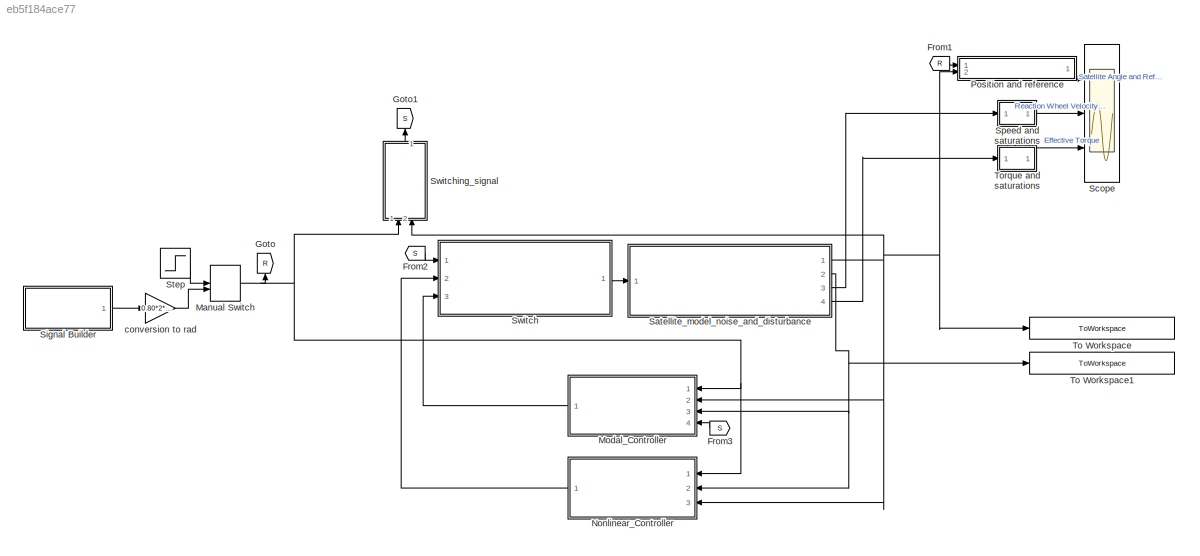
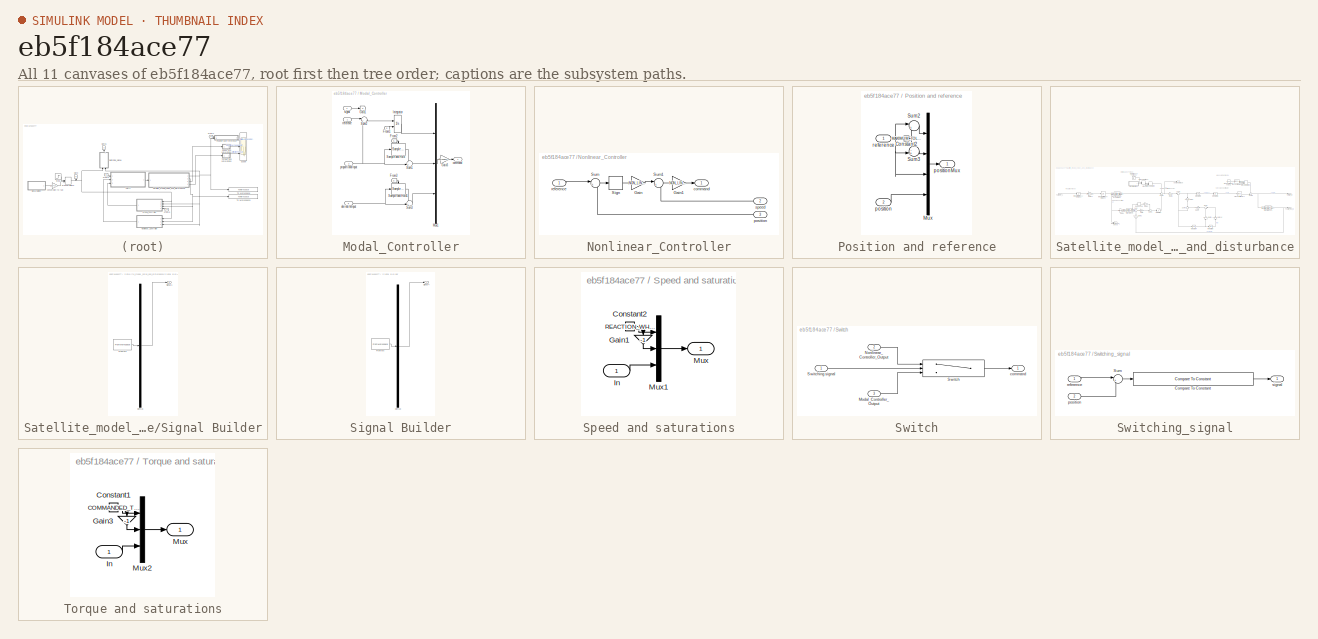
[diagram: thumbnail index - all 11 canvases of the model, root first then tree order]
MODEL slx_eb5f184ace77
KIND model
CONFIG AbsTol = auto
CONFIG EnableMultiTasking = off
CONFIG FixedStep = auto
CONFIG MaxStep = auto
CONFIG MinStep = auto
CONFIG RelTol = 1e-3
CONFIG SampleTimeConstraint = Unconstrained
CONFIG SolverName = VariableStepAuto
CONFIG StartTime = 0.0
CONFIG StopTime = 800
BLOCK [From] From1
  GotoTag = R
BLOCK [From] From2
  GotoTag = S
BLOCK [From] From3
  GotoTag = S
  NameLocation = top
BLOCK [Goto] Goto
  GotoTag = R
  NameLocation = right
BLOCK [Goto] Goto1
  GotoTag = S
  NameLocation = right
BLOCK [ManualSwitch] Manual Switch
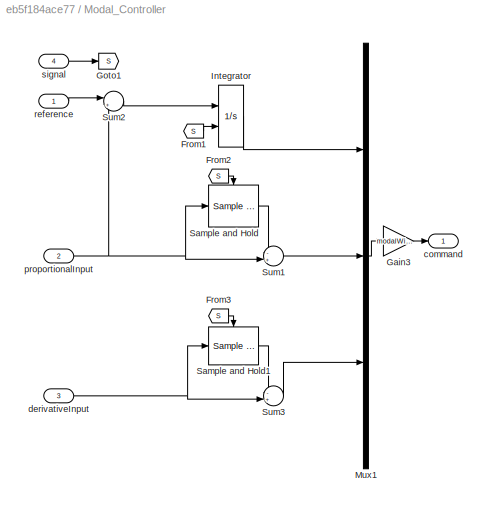
BLOCK [SubSystem] Modal_Controller
  NameLocation = top
  Ports = [4, 1]
  RequestExecContextInheritance = off
BLOCK [From] Modal_Controller/From1
  GotoTag = S
BLOCK [From] Modal_Controller/From2
  GotoTag = S
BLOCK [From] Modal_Controller/From3
  GotoTag = S
BLOCK [Gain] Modal_Controller/Gain3
  Gain = modalWithIntegratorGainMatrixStateFeedback
  Multiplication = Matrix(K*u)
BLOCK [Goto] Modal_Controller/Goto1
  GotoTag = S
BLOCK [Integrator] Modal_Controller/Integrator
  ExternalReset = either
  Ports = [2, 1]
BLOCK [Mux] Modal_Controller/Mux1
  DisplayOption = bar
  Inputs = 3
  Ports = [3, 1]
BLOCK [Reference] Modal_Controller/Sample and Hold  REF=dspsigops/Sample
and Hold
  Ports = [1, 1, 0, 1]
  SourceBlock = dspsigops/Sample\nand Hold
  SourceProductName = DSP System Toolbox
  SourceType = Sample and Hold
BLOCK [Reference] Modal_Controller/Sample and Hold1  REF=dspsigops/Sample
and Hold
  Ports = [1, 1, 0, 1]
  SourceBlock = dspsigops/Sample\nand Hold
  SourceProductName = DSP System Toolbox
  SourceType = Sample and Hold
BLOCK [Sum] Modal_Controller/Sum1
  Inputs = -+|
  Ports = [2, 1]
BLOCK [Sum] Modal_Controller/Sum2
  Inputs = |+-
  Ports = [2, 1]
BLOCK [Sum] Modal_Controller/Sum3
  Inputs = -+|
  Ports = [2, 1]
BLOCK [Outport] Modal_Controller/command
BLOCK [Inport] Modal_Controller/derivativeInput
  Port = 3
BLOCK [Inport] Modal_Controller/proportionalInput
  Port = 2
BLOCK [Inport] Modal_Controller/reference
BLOCK [Inport] Modal_Controller/signal
  Port = 4
BLOCK [SubSystem] Nonlinear_Controller
  NameLocation = top
  Ports = [3, 1]
  RequestExecContextInheritance = off
BLOCK [Gain] Nonlinear_Controller/Gain
  Gain = NON_LINEAR_CONTROL_SPEED_COMMAND
BLOCK [Gain] Nonlinear_Controller/Gain1
  Gain = NON_LINEAR_CONTROL_GAIN
BLOCK [Signum] Nonlinear_Controller/Sign
  ZeroCross = off
BLOCK [Sum] Nonlinear_Controller/Sum
  Inputs = |+-
  Ports = [2, 1]
BLOCK [Sum] Nonlinear_Controller/Sum1
  Inputs = |+-
  Ports = [2, 1]
BLOCK [Outport] Nonlinear_Controller/command
BLOCK [Inport] Nonlinear_Controller/position
  Port = 3
BLOCK [Inport] Nonlinear_Controller/reference
BLOCK [Inport] Nonlinear_Controller/speed
  Port = 2
BLOCK [SubSystem] Position and reference
  Ports = [2, 1]
  RequestExecContextInheritance = off
BLOCK [Constant] Position and reference/Constant2
  Value = MAXIMUM_TOLERABLE_POINTING_ERROR
BLOCK [Mux] Position and reference/Mux
  DisplayOption = bar
  Ports = [4, 1]
BLOCK [Sum] Position and reference/Sum2
  Inputs = |++
  Ports = [2, 1]
BLOCK [Sum] Position and reference/Sum3
  Inputs = -+|
  Ports = [2, 1]
BLOCK [Inport] Position and reference/position
  Port = 2
BLOCK [Outport] Position and reference/positionMux
BLOCK [Inport] Position and reference/reference
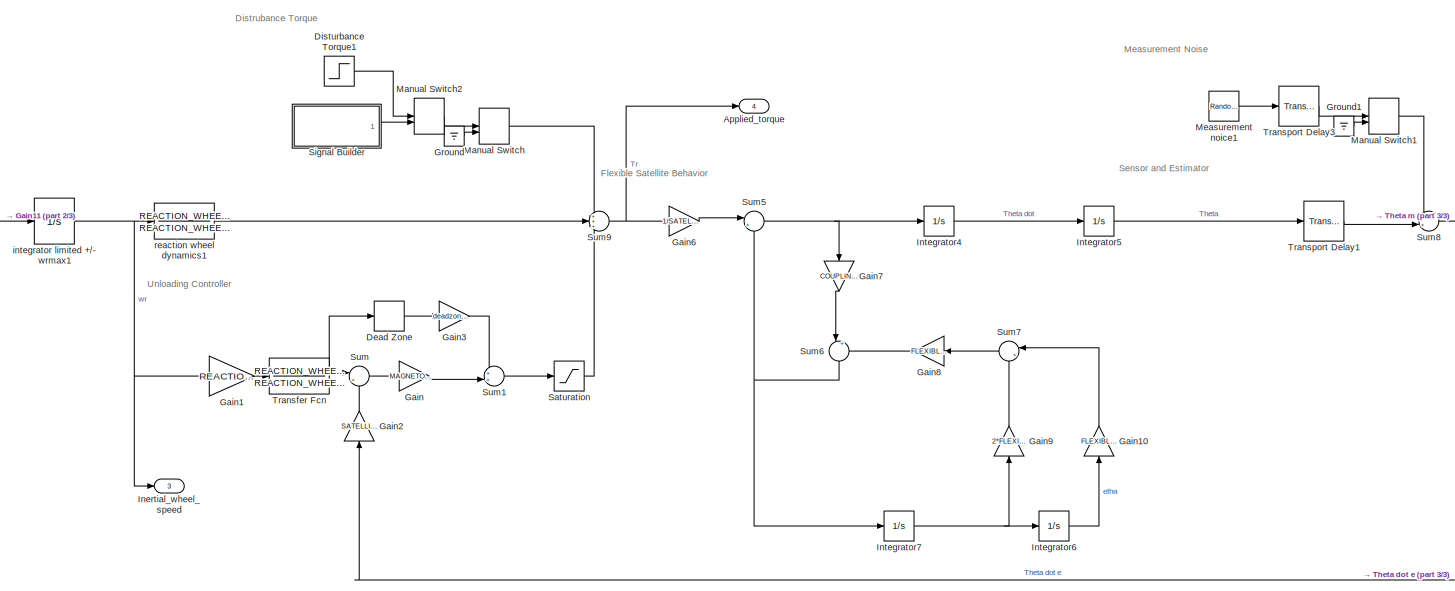
[diagram: Satellite_model_noise_and_disturbance - part 1/3, center side, full height]
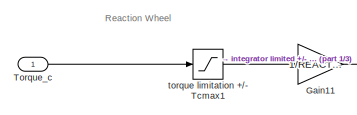
[diagram: Satellite_model_noise_and_disturbance - part 2/3, middle left region]
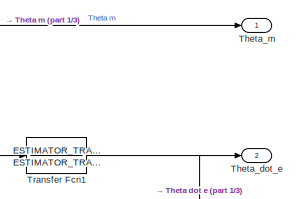
[diagram: Satellite_model_noise_and_disturbance - part 3/3, middle right region]
BLOCK [SubSystem] Satellite_model_noise_and_disturbance
  Ports = [1, 4]
  RequestExecContextInheritance = off
BLOCK [Outport] Satellite_model_noise_and_disturbance/Applied_torque
  Port = 4
BLOCK [DeadZone] Satellite_model_noise_and_disturbance/Dead Zone
  LowerValue = -DEADZONE_REACTION_WHEEL_ANGULAR_MOMENTUM
  UpperValue = DEADZONE_REACTION_WHEEL_ANGULAR_MOMENTUM
BLOCK [Step] Satellite_model_noise_and_disturbance/Disturbance Torque1
  After = DISTURBANCE_TORQUE
  SampleTime = 0
  Time = DISTURBANCE_TORQUE_DELAY
BLOCK [Gain] Satellite_model_noise_and_disturbance/Gain
  Gain = MAGNETORQUER_CONTROLLER_GAIN
BLOCK [Gain] Satellite_model_noise_and_disturbance/Gain1
  Gain = REACTION_WHEEL_INERTIA
BLOCK [Gain] Satellite_model_noise_and_disturbance/Gain10
  Gain = FLEXIBLE_MODE_FREQUENCY
  NameLocation = right
BLOCK [Gain] Satellite_model_noise_and_disturbance/Gain11
  Gain = 1/REACTION_WHEEL_INERTIA
BLOCK [Gain] Satellite_model_noise_and_disturbance/Gain2
  Gain = SATELLITE_INERTIA
  NameLocation = right
BLOCK [Gain] Satellite_model_noise_and_disturbance/Gain3
  Gain = deadzoneControllerGain
BLOCK [Gain] Satellite_model_noise_and_disturbance/Gain6
  Gain = 1/SATELLITE_INERTIA
BLOCK [Gain] Satellite_model_noise_and_disturbance/Gain7
  Gain = COUPLING_COEFFICIENT
  NameLocation = left
BLOCK [Gain] Satellite_model_noise_and_disturbance/Gain8
  Gain = FLEXIBLE_MODE_FREQUENCY
  NameLocation = top
BLOCK [Gain] Satellite_model_noise_and_disturbance/Gain9
  Gain = 2*FLEXIBLE_MODE_DAMPING_RATIO
  NameLocation = right
BLOCK [Ground] Satellite_model_noise_and_disturbance/Ground
BLOCK [Ground] Satellite_model_noise_and_disturbance/Ground1
BLOCK [Outport] Satellite_model_noise_and_disturbance/Inertial_wheel_speed
  Port = 3
BLOCK [Integrator] Satellite_model_noise_and_disturbance/Integrator4
  Ports = [1, 1]
BLOCK [Integrator] Satellite_model_noise_and_disturbance/Integrator5
  Ports = [1, 1]
BLOCK [Integrator] Satellite_model_noise_and_disturbance/Integrator6
  InitialCondition = INITIAL_CONDITION_ON_STATE
  Ports = [1, 1]
BLOCK [Integrator] Satellite_model_noise_and_disturbance/Integrator7
  Ports = [1, 1]
BLOCK [ManualSwitch] Satellite_model_noise_and_disturbance/Manual Switch
BLOCK [ManualSwitch] Satellite_model_noise_and_disturbance/Manual Switch1
  CurrentSetting = 0
BLOCK [ManualSwitch] Satellite_model_noise_and_disturbance/Manual Switch2
BLOCK [RandomNumber] Satellite_model_noise_and_disturbance/Measurement noice1
  SampleTime = 0.01
  Variance = MEASUREMENT_NOISE_VARIANCE
BLOCK [Saturate] Satellite_model_noise_and_disturbance/Saturation
  LowerLimit = -UNLOADING_TORQUE_SATURATION
  UpperLimit = UNLOADING_TORQUE_SATURATION
BLOCK [SubSystem] Satellite_model_noise_and_disturbance/Signal Builder
  ClipboardFcn = sigbuilder_block('clipboard');
  CloseFcn = sigbuilder_block('close');
  ContinueFcn = sigbuilder_block('continue');
  CopyFcn = sigbuilder_block('copy');
  DeleteFcn = sigbuilder_block('delete');
  LoadFcn = sigbuilder_block('load');
  MaskHideContents = on
  ModelCloseFcn = sigbuilder_block('modelClose');
  NameChangeFcn = sigbuilder_block('namechange');
  OpenFcn = sigbuilder_block('open',[322.5 150.75 550.5 359.25 ]);
  PauseFcn = sigbuilder_block('pause');
  Ports = [0, 1]
  PreSaveFcn = sigbuilder_block('preSave');
  RequestExecContextInheritance = off
  StartFcn = sigbuilder_block('start');
  StopFcn = sigbuilder_block('stop');
  Tag = STV Subsys
BLOCK [Demux] Satellite_model_noise_and_disturbance/Signal Builder/Demux
  DisplayOption = none
  Outputs = 1
  Ports = [1, 1]
  Tag = STV Demux
BLOCK [FromWorkspace] Satellite_model_noise_and_disturbance/Signal Builder/FromWs
  Tag = STV FromWs
  VariableName = tuvar
BLOCK [Outport] Satellite_model_noise_and_disturbance/Signal Builder/Signal 1
  Tag = STV Outport
BLOCK [Sum] Satellite_model_noise_and_disturbance/Sum
  Inputs = |+-
  Ports = [2, 1]
BLOCK [Sum] Satellite_model_noise_and_disturbance/Sum1
  Inputs = ++|
  Ports = [2, 1]
BLOCK [Sum] Satellite_model_noise_and_disturbance/Sum5
  Inputs = |++
  Ports = [2, 1]
BLOCK [Sum] Satellite_model_noise_and_disturbance/Sum6
  Inputs = |+-
  NameLocation = left
  Ports = [2, 1]
BLOCK [Sum] Satellite_model_noise_and_disturbance/Sum7
  Inputs = |++
  NameLocation = top
  Ports = [2, 1]
BLOCK [Sum] Satellite_model_noise_and_disturbance/Sum8
  Inputs = ++|
  Ports = [2, 1]
BLOCK [Sum] Satellite_model_noise_and_disturbance/Sum9
  Inputs = +++
  Ports = [3, 1]
BLOCK [Outport] Satellite_model_noise_and_disturbance/Theta_dot_e
  Port = 2
BLOCK [Outport] Satellite_model_noise_and_disturbance/Theta_m
BLOCK [Inport] Satellite_model_noise_and_disturbance/Torque_c
BLOCK [TransferFcn] Satellite_model_noise_and_disturbance/Transfer Fcn
  Denominator = REACTION_WHEEL_ANGULAR_MOMENTUM.TRANSFER_FUNCTION.Denominator{1}
  Numerator = REACTION_WHEEL_ANGULAR_MOMENTUM.TRANSFER_FUNCTION.Numerator{1}
BLOCK [TransferFcn] Satellite_model_noise_and_disturbance/Transfer Fcn1
  Denominator = ESTIMATOR_TRANSFER_FUNCTION_DENOMINATOR
  Numerator = ESTIMATOR_TRANSFER_FUNCTION_NUMERATOR
BLOCK [TransportDelay] Satellite_model_noise_and_disturbance/Transport Delay1
  DelayTime = MEASUREMENT_DELAY
  Ports = [1, 1]
BLOCK [TransportDelay] Satellite_model_noise_and_disturbance/Transport Delay3
  DelayTime = STAR_TRACKER_NOISE_DELAY
  Ports = [1, 1]
BLOCK [Integrator] Satellite_model_noise_and_disturbance/integrator limited +//- wrmax1
  LimitOutput = on
  LowerSaturationLimit = -REACTION_WHEEL_VELOCITY_SATURATION
  Ports = [1, 1]
  UpperSaturationLimit = REACTION_WHEEL_VELOCITY_SATURATION
BLOCK [TransferFcn] Satellite_model_noise_and_disturbance/reaction wheel dynamics1
  Denominator = REACTION_WHEEL_DYNAMICS_DENOMINATOR
  Numerator = REACTION_WHEEL_DYNAMICS_NUMERATOR
BLOCK [Saturate] Satellite_model_noise_and_disturbance/torque limitation +//- Tcmax1
  LowerLimit = -COMMANDED_TORQUE_SATURATION
  UpperLimit = COMMANDED_TORQUE_SATURATION
BLOCK [Scope] Scope
  Floating = off
  NumInputPorts = 3
  Ports = [3]
  ScopeSpecificationString = Simulink.scopes.TimeScopeBlockCfg('CurrentConfiguration', extmgr.ConfigurationSet(extmgr.Configuration('Core','General UI',true),extmgr.Configuration('Core','Source UI',true),extmgr.Configuration('Sources','WiredSimulink',true),extmgr.Configuration('Visuals','Time Domain',true,'SerializedDisplays',{struct('MinYLimReal','-0.06059','MaxYLimReal','0.54391','YLabelReal','','MinYLimMag','0.00000','MaxY...<+3107ch>
BLOCK [SubSystem] Signal Builder
  ClipboardFcn = sigbuilder_block('clipboard');
  CloseFcn = sigbuilder_block('close');
  ContinueFcn = sigbuilder_block('continue');
  CopyFcn = sigbuilder_block('copy');
  DeleteFcn = sigbuilder_block('delete');
  LoadFcn = sigbuilder_block('load');
  MaskHideContents = on
  ModelCloseFcn = sigbuilder_block('modelClose');
  NameChangeFcn = sigbuilder_block('namechange');
  OpenFcn = sigbuilder_block('open',[371.25 48 550.5 359.25 ]);
  PauseFcn = sigbuilder_block('pause');
  Ports = [0, 1]
  PreSaveFcn = sigbuilder_block('preSave');
  RequestExecContextInheritance = off
  StartFcn = sigbuilder_block('start');
  StopFcn = sigbuilder_block('stop');
  Tag = STV Subsys
BLOCK [Demux] Signal Builder/Demux
  DisplayOption = none
  Outputs = 1
  Ports = [1, 1]
  Tag = STV Demux
BLOCK [FromWorkspace] Signal Builder/FromWs
  Tag = STV FromWs
  VariableName = tuvar
BLOCK [Outport] Signal Builder/Signal 4
  Tag = STV Outport
BLOCK [SubSystem] Speed and saturations
  Ports = [1, 1]
  RequestExecContextInheritance = off
BLOCK [Constant] Speed and saturations/Constant2
  Value = REACTION_WHEEL_VELOCITY_SATURATION
BLOCK [Gain] Speed and saturations/Gain1
  Gain = -1
  NameLocation = left
BLOCK [Inport] Speed and saturations/In
BLOCK [Outport] Speed and saturations/Mux
BLOCK [Mux] Speed and saturations/Mux1
  DisplayOption = bar
  Inputs = 3
  Ports = [3, 1]
BLOCK [Step] Step
  After = MAXIMUM_LARGE_POINTING_ERROR
  SampleTime = 0
  Time = 0
BLOCK [SubSystem] Switch
  Ports = [3, 1]
  RequestExecContextInheritance = off
BLOCK [Inport] Switch/Modal_Controller_Output
  NameLocation = top
  Port = 3
BLOCK [Inport] Switch/Nonlinear_Controller_Output
  NameLocation = top
  Port = 2
BLOCK [Switch] Switch/Switch
  Criteria = u2 > Threshold
  InputSameDT = off
  SaturateOnIntegerOverflow = off
BLOCK [Inport] Switch/Switching signal
BLOCK [Outport] Switch/command
BLOCK [SubSystem] Switching_signal
  NameLocation = right
  Ports = [2, 1]
  RequestExecContextInheritance = off
BLOCK [Reference] Switching_signal/Compare To Constant  REF=simulink/Logic and Bit
Operations/Compare
To Constant
  Ports = [1, 1]
  SourceBlock = simulink/Logic and Bit\nOperations/Compare\nTo Constant
  SourceProductBaseCode = SL
  SourceType = Compare To Constant
BLOCK [Sum] Switching_signal/Sum
  Inputs = |+-
  Ports = [2, 1]
BLOCK [Inport] Switching_signal/position
  Port = 2
BLOCK [Inport] Switching_signal/reference
BLOCK [Outport] Switching_signal/signal
BLOCK [ToWorkspace] To Workspace
  FixptAsFi = on
  MaxDataPoints = inf
  Ports = [1]
  SampleTime = -1
  SaveFormat = Timeseries
  VariableName = measuredSatelliteAngle
BLOCK [ToWorkspace] To Workspace1
  FixptAsFi = on
  MaxDataPoints = inf
  Ports = [1]
  SampleTime = -1
  SaveFormat = Timeseries
  VariableName = estimatedSatelliteAngularSpeed
BLOCK [SubSystem] Torque and saturations
  Ports = [1, 1]
  RequestExecContextInheritance = off
BLOCK [Constant] Torque and saturations/Constant1
  Value = COMMANDED_TORQUE_SATURATION
BLOCK [Gain] Torque and saturations/Gain3
  Gain = -1
  NameLocation = left
BLOCK [Inport] Torque and saturations/In
BLOCK [Outport] Torque and saturations/Mux
BLOCK [Mux] Torque and saturations/Mux2
  DisplayOption = bar
  Inputs = 3
  Ports = [3, 1]
BLOCK [Gain] conversion to rad
  Gain = 0.80*2*pi/360
ANNOTATION Satellite_model_noise_and_disturbance: Distrubance Torque
ANNOTATION Satellite_model_noise_and_disturbance: Flexible Satellite Behavior
ANNOTATION Satellite_model_noise_and_disturbance: Measurement Noise
ANNOTATION Satellite_model_noise_and_disturbance: Reaction Wheel
ANNOTATION Satellite_model_noise_and_disturbance: Sensor and Estimator
ANNOTATION Satellite_model_noise_and_disturbance: Unloading Controller
LINE From1:1 -> Position and reference:1
LINE From2:1 -> Switch:1
LINE From3:1 -> Modal_Controller:4
NET Manual Switch:1 -> Goto:1, Modal_Controller:1, Nonlinear_Controller:1, Switching_signal:1
LINE Modal_Controller/From1:1 -> Modal_Controller/Integrator:2
LINE Modal_Controller/From2:1 -> Modal_Controller/Sample and Hold:trigger
LINE Modal_Controller/From3:1 -> Modal_Controller/Sample and Hold1:trigger
LINE Modal_Controller/Gain3:1 -> Modal_Controller/command:1
LINE Modal_Controller/Integrator:1 -> Modal_Controller/Mux1:1
LINE Modal_Controller/Mux1:1 -> Modal_Controller/Gain3:1
LINE Modal_Controller/Sample and Hold1:1 -> Modal_Controller/Sum3:1
LINE Modal_Controller/Sample and Hold:1 -> Modal_Controller/Sum1:1
LINE Modal_Controller/Sum1:1 -> Modal_Controller/Mux1:2
LINE Modal_Controller/Sum2:1 -> Modal_Controller/Integrator:1
LINE Modal_Controller/Sum3:1 -> Modal_Controller/Mux1:3
NET Modal_Controller/derivativeInput:1 -> Modal_Controller/Sample and Hold1:1, Modal_Controller/Sum3:2
NET Modal_Controller/proportionalInput:1 -> Modal_Controller/Sample and Hold:1, Modal_Controller/Sum1:2, Modal_Controller/Sum2:2
LINE Modal_Controller/reference:1 -> Modal_Controller/Sum2:1
LINE Modal_Controller/signal:1 -> Modal_Controller/Goto1:1
LINE Modal_Controller:1 -> Switch:3
LINE Nonlinear_Controller/Gain1:1 -> Nonlinear_Controller/command:1
LINE Nonlinear_Controller/Gain:1 -> Nonlinear_Controller/Sum1:1
LINE Nonlinear_Controller/Sign:1 -> Nonlinear_Controller/Gain:1
LINE Nonlinear_Controller/Sum1:1 -> Nonlinear_Controller/Gain1:1
LINE Nonlinear_Controller/Sum:1 -> Nonlinear_Controller/Sign:1
LINE Nonlinear_Controller/position:1 -> Nonlinear_Controller/Sum:2
LINE Nonlinear_Controller/reference:1 -> Nonlinear_Controller/Sum:1
LINE Nonlinear_Controller/speed:1 -> Nonlinear_Controller/Sum1:2
LINE Nonlinear_Controller:1 -> Switch:2
NET Position and reference/Constant2:1 -> Position and reference/Sum2:2, Position and reference/Sum3:1
LINE Position and reference/Mux:1 -> Position and reference/positionMux:1
LINE Position and reference/Sum2:1 -> Position and reference/Mux:1
LINE Position and reference/Sum3:1 -> Position and reference/Mux:2
LINE Position and reference/position:1 -> Position and reference/Mux:4
NET Position and reference/reference:1 -> Position and reference/Mux:3, Position and reference/Sum2:1, Position and reference/Sum3:2
LINE Position and reference:1 -> Scope:1
LINE Satellite_model_noise_and_disturbance/Dead Zone:1 -> Satellite_model_noise_and_disturbance/Gain3:1
LINE Satellite_model_noise_and_disturbance/Disturbance Torque1:1 -> Satellite_model_noise_and_disturbance/Manual Switch2:1
LINE Satellite_model_noise_and_disturbance/Gain10:1 -> Satellite_model_noise_and_disturbance/Sum7:1
LINE Satellite_model_noise_and_disturbance/Gain11:1 -> Satellite_model_noise_and_disturbance/integrator limited +//- wrmax1:1
LINE Satellite_model_noise_and_disturbance/Gain1:1 -> Satellite_model_noise_and_disturbance/Transfer Fcn:1
LINE Satellite_model_noise_and_disturbance/Gain2:1 -> Satellite_model_noise_and_disturbance/Sum:2
LINE Satellite_model_noise_and_disturbance/Gain3:1 -> Satellite_model_noise_and_disturbance/Sum1:1
LINE Satellite_model_noise_and_disturbance/Gain6:1 -> Satellite_model_noise_and_disturbance/Sum5:1
LINE Satellite_model_noise_and_disturbance/Gain7:1 -> Satellite_model_noise_and_disturbance/Sum6:1
LINE Satellite_model_noise_and_disturbance/Gain8:1 -> Satellite_model_noise_and_disturbance/Sum6:2
LINE Satellite_model_noise_and_disturbance/Gain9:1 -> Satellite_model_noise_and_disturbance/Sum7:2
LINE Satellite_model_noise_and_disturbance/Gain:1 -> Satellite_model_noise_and_disturbance/Sum1:2
LINE Satellite_model_noise_and_disturbance/Ground1:1 -> Satellite_model_noise_and_disturbance/Manual Switch1:2
LINE Satellite_model_noise_and_disturbance/Ground:1 -> Satellite_model_noise_and_disturbance/Manual Switch:2
LINE Satellite_model_noise_and_disturbance/Integrator4:1 -> Satellite_model_noise_and_disturbance/Integrator5:1
LINE Satellite_model_noise_and_disturbance/Integrator5:1 -> Satellite_model_noise_and_disturbance/Transport Delay1:1
LINE Satellite_model_noise_and_disturbance/Integrator6:1 -> Satellite_model_noise_and_disturbance/Gain10:1
NET Satellite_model_noise_and_disturbance/Integrator7:1 -> Satellite_model_noise_and_disturbance/Gain9:1, Satellite_model_noise_and_disturbance/Integrator6:1
LINE Satellite_model_noise_and_disturbance/Manual Switch1:1 -> Satellite_model_noise_and_disturbance/Sum8:1
LINE Satellite_model_noise_and_disturbance/Manual Switch2:1 -> Satellite_model_noise_and_disturbance/Manual Switch:1
LINE Satellite_model_noise_and_disturbance/Manual Switch:1 -> Satellite_model_noise_and_disturbance/Sum9:1
LINE Satellite_model_noise_and_disturbance/Measurement noice1:1 -> Satellite_model_noise_and_disturbance/Transport Delay3:1
LINE Satellite_model_noise_and_disturbance/Saturation:1 -> Satellite_model_noise_and_disturbance/Sum9:3
LINE Satellite_model_noise_and_disturbance/Signal Builder:1 -> Satellite_model_noise_and_disturbance/Manual Switch2:2
LINE Satellite_model_noise_and_disturbance/Sum1:1 -> Satellite_model_noise_and_disturbance/Saturation:1
NET Satellite_model_noise_and_disturbance/Sum5:1 -> Satellite_model_noise_and_disturbance/Gain7:1, Satellite_model_noise_and_disturbance/Integrator4:1
NET Satellite_model_noise_and_disturbance/Sum6:1 -> Satellite_model_noise_and_disturbance/Integrator7:1, Satellite_model_noise_and_disturbance/Sum5:2
LINE Satellite_model_noise_and_disturbance/Sum7:1 -> Satellite_model_noise_and_disturbance/Gain8:1
NET Satellite_model_noise_and_disturbance/Sum8:1 -> Satellite_model_noise_and_disturbance/Theta_m:1, Satellite_model_noise_and_disturbance/Transfer Fcn1:1
NET Satellite_model_noise_and_disturbance/Sum9:1 -> Satellite_model_noise_and_disturbance/Applied_torque:1, Satellite_model_noise_and_disturbance/Gain6:1
LINE Satellite_model_noise_and_disturbance/Sum:1 -> Satellite_model_noise_and_disturbance/Gain:1
LINE Satellite_model_noise_and_disturbance/Torque_c:1 -> Satellite_model_noise_and_disturbance/torque limitation +//- Tcmax1:1
NET Satellite_model_noise_and_disturbance/Transfer Fcn1:1 -> Satellite_model_noise_and_disturbance/Gain2:1, Satellite_model_noise_and_disturbance/Theta_dot_e:1
NET Satellite_model_noise_and_disturbance/Transfer Fcn:1 -> Satellite_model_noise_and_disturbance/Dead Zone:1, Satellite_model_noise_and_disturbance/Sum:1
LINE Satellite_model_noise_and_disturbance/Transport Delay1:1 -> Satellite_model_noise_and_disturbance/Sum8:2
LINE Satellite_model_noise_and_disturbance/Transport Delay3:1 -> Satellite_model_noise_and_disturbance/Manual Switch1:1
NET Satellite_model_noise_and_disturbance/integrator limited +//- wrmax1:1 -> Satellite_model_noise_and_disturbance/Gain1:1, Satellite_model_noise_and_disturbance/Inertial_wheel_speed:1, Satellite_model_noise_and_disturbance/reaction wheel dynamics1:1
LINE Satellite_model_noise_and_disturbance/reaction wheel dynamics1:1 -> Satellite_model_noise_and_disturbance/Sum9:2
LINE Satellite_model_noise_and_disturbance/torque limitation +//- Tcmax1:1 -> Satellite_model_noise_and_disturbance/Gain11:1
NET Satellite_model_noise_and_disturbance:1 -> Modal_Controller:2, Nonlinear_Controller:3, Position and reference:2, Switching_signal:2, To Workspace:1
NET Satellite_model_noise_and_disturbance:2 -> Modal_Controller:3, Nonlinear_Controller:2, To Workspace1:1
LINE Satellite_model_noise_and_disturbance:3 -> Speed and saturations:1
LINE Satellite_model_noise_and_disturbance:4 -> Torque and saturations:1
LINE Signal Builder:1 -> conversion to rad:1
NET Speed and saturations/Constant2:1 -> Speed and saturations/Gain1:1, Speed and saturations/Mux1:1
LINE Speed and saturations/Gain1:1 -> Speed and saturations/Mux1:2
LINE Speed and saturations/In:1 -> Speed and saturations/Mux1:3
LINE Speed and saturations/Mux1:1 -> Speed and saturations/Mux:1
LINE Speed and saturations:1 -> Scope:2
LINE Step:1 -> Manual Switch:1
LINE Switch/Modal_Controller_Output:1 -> Switch/Switch:3
LINE Switch/Nonlinear_Controller_Output:1 -> Switch/Switch:1
LINE Switch/Switch:1 -> Switch/command:1
LINE Switch/Switching signal:1 -> Switch/Switch:2
LINE Switch:1 -> Satellite_model_noise_and_disturbance:1
LINE Switching_signal/Compare To Constant:1 -> Switching_signal/signal:1
LINE Switching_signal/Sum:1 -> Switching_signal/Compare To Constant:1
LINE Switching_signal/position:1 -> Switching_signal/Sum:2
LINE Switching_signal/reference:1 -> Switching_signal/Sum:1
LINE Switching_signal:1 -> Goto1:1
NET Torque and saturations/Constant1:1 -> Torque and saturations/Gain3:1, Torque and saturations/Mux2:1
LINE Torque and saturations/Gain3:1 -> Torque and saturations/Mux2:2
LINE Torque and saturations/In:1 -> Torque and saturations/Mux2:3
LINE Torque and saturations/Mux2:1 -> Torque and saturations/Mux:1
LINE Torque and saturations:1 -> Scope:3
LINE conversion to rad:1 -> Manual Switch:2
note: NET lines group one-source signal fan-out (src -> all destinations, sorted); 1:1 wires keep LINE
